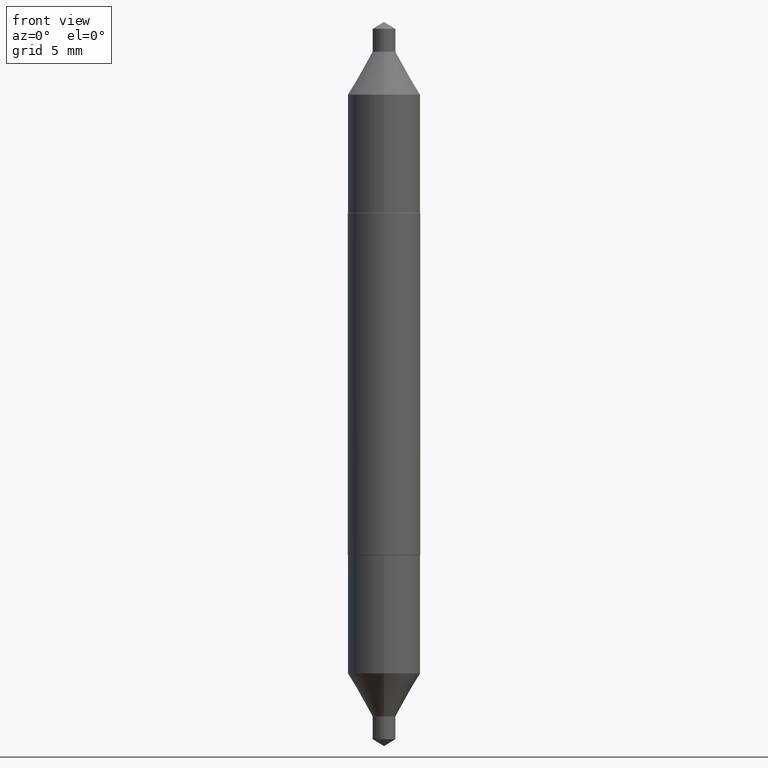
[diagram: clean part render]
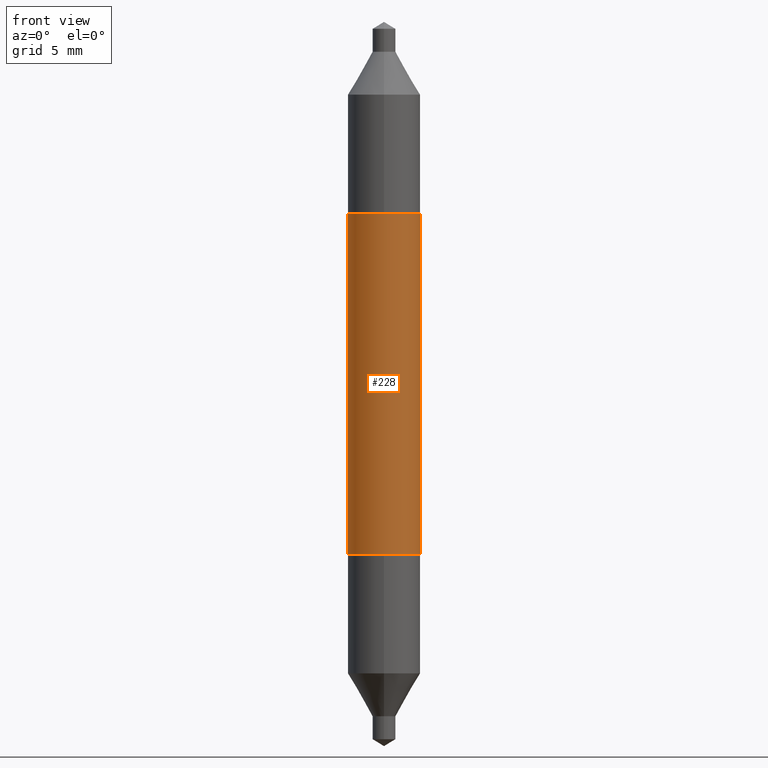
[diagram: same view with one face highlighted and labeled with its STEP entity id]
A machine part, front view. The second image highlights one B-rep face of the part: STEP entity #228.
In plain terms, the highlighted cylindrical surface (edge-blend (fillet) strip) has radius 1.5748 mm, axis along (-0, 0, 1).
Its self-contained STEP definition (entity closure, byte-faithful):
#9 = CIRCLE ( 'NONE', #315, 0.06200000000000004119 ) ;
#10 = FACE_OUTER_BOUND ( 'NONE', #15, .T. ) ;
#15 = EDGE_LOOP ( 'NONE', ( #117, #397, #329, #143 ) ) ;
#62 = CYLINDRICAL_SURFACE ( 'NONE', #630, 0.06200000000000001343 ) ;
#97 = VERTEX_POINT ( 'NONE', #379 ) ;
#117 = ORIENTED_EDGE ( 'NONE', *, *, #551, .F. ) ;
#127 = CARTESIAN_POINT ( 'NONE',  ( 0.06200000000000001343, -4.329436860165486130E-16, 3.023229600993481018E-30 ) ) ;
#143 = ORIENTED_EDGE ( 'NONE', *, *, #577, .F. ) ;
#150 = CARTESIAN_POINT ( 'NONE',  ( -0.06200000000000001343, 4.405364961712622107E-16, -3.049739755958042274E-30 ) ) ;
#202 = DIRECTION ( 'NONE',  ( 1.000000000000000000, -6.982962677686267499E-15, 0.000000000000000000 ) ) ;
#205 = AXIS2_PLACEMENT_3D ( 'NONE', #543, #330, #395 ) ;
#208 = CARTESIAN_POINT ( 'NONE',  ( 7.152996258091522360E-30, -1.021258291611619820E-15, -0.2924999999999999267 ) ) ;
#210 = LINE ( 'NONE', #150, #506 ) ;
#228 = ADVANCED_FACE ( 'NONE', ( #10 ), #62, .T. ) ;
#278 = LINE ( 'NONE', #127, #472 ) ;
#315 = AXIS2_PLACEMENT_3D ( 'NONE', #208, #521, #202 ) ;
#329 = ORIENTED_EDGE ( 'NONE', *, *, #605, .T. ) ;
#330 = DIRECTION ( 'NONE',  ( -2.445468806185136597E-29, 3.491481338843145583E-15, 1.000000000000000000 ) ) ;
#331 = CARTESIAN_POINT ( 'NONE',  ( -0.06200000000000004119, 4.405364961712621121E-16, 0.2924999999999999267 ) ) ;
#379 = CARTESIAN_POINT ( 'NONE',  ( -0.06200000000000004119, -5.807217954403574117E-16, -0.2924999999999999267 ) ) ;
#395 = DIRECTION ( 'NONE',  ( 1.000000000000000000, -6.982962677686267499E-15, 0.000000000000000000 ) ) ;
#397 = ORIENTED_EDGE ( 'NONE', *, *, #500, .T. ) ;
#429 = DIRECTION ( 'NONE',  ( 1.000000000000000000, -6.982962677686266711E-15, 4.876176775795935793E-29 ) ) ;
#444 = DIRECTION ( 'NONE',  ( -2.445468806185136877E-29, 3.491481338843145188E-15, 1.000000000000000000 ) ) ;
#449 = VERTEX_POINT ( 'NONE', #478 ) ;
#472 = VECTOR ( 'NONE', #444, 39.37007874015748143 ) ;
#473 = DIRECTION ( 'NONE',  ( -2.445468806185136877E-29, 3.491481338843145188E-15, 1.000000000000000000 ) ) ;
#478 = CARTESIAN_POINT ( 'NONE',  ( 0.06200000000000004119, 5.883146055950708615E-16, 0.2924999999999999267 ) ) ;
#489 = CARTESIAN_POINT ( 'NONE',  ( 0.06200000000000004119, -1.454201977628168679E-15, -0.2924999999999999267 ) ) ;
#500 = EDGE_CURVE ( 'NONE', #97, #606, #9, .T. ) ;
#505 = CIRCLE ( 'NONE', #205, 0.06200000000000004119 ) ;
#506 = VECTOR ( 'NONE', #473, 39.37007874015748143 ) ;
#521 = DIRECTION ( 'NONE',  ( -2.445468806185136597E-29, 3.491481338843145583E-15, 1.000000000000000000 ) ) ;
#543 = CARTESIAN_POINT ( 'NONE',  ( -7.152996258091522360E-30, 1.021258291611619820E-15, 0.2924999999999999267 ) ) ;
#551 = EDGE_CURVE ( 'NONE', #97, #622, #210, .T. ) ;
#577 = EDGE_CURVE ( 'NONE', #622, #449, #505, .T. ) ;
#605 = EDGE_CURVE ( 'NONE', #606, #449, #278, .T. ) ;
#606 = VERTEX_POINT ( 'NONE', #489 ) ;
#622 = VERTEX_POINT ( 'NONE', #331 ) ;
#630 = AXIS2_PLACEMENT_3D ( 'NONE', #659, #691, #429 ) ;
#659 = CARTESIAN_POINT ( 'NONE',  ( 0.000000000000000000, 0.000000000000000000, 0.000000000000000000 ) ) ;
#691 = DIRECTION ( 'NONE',  ( -2.445468806185136597E-29, 3.491481338843145583E-15, 1.000000000000000000 ) ) ;